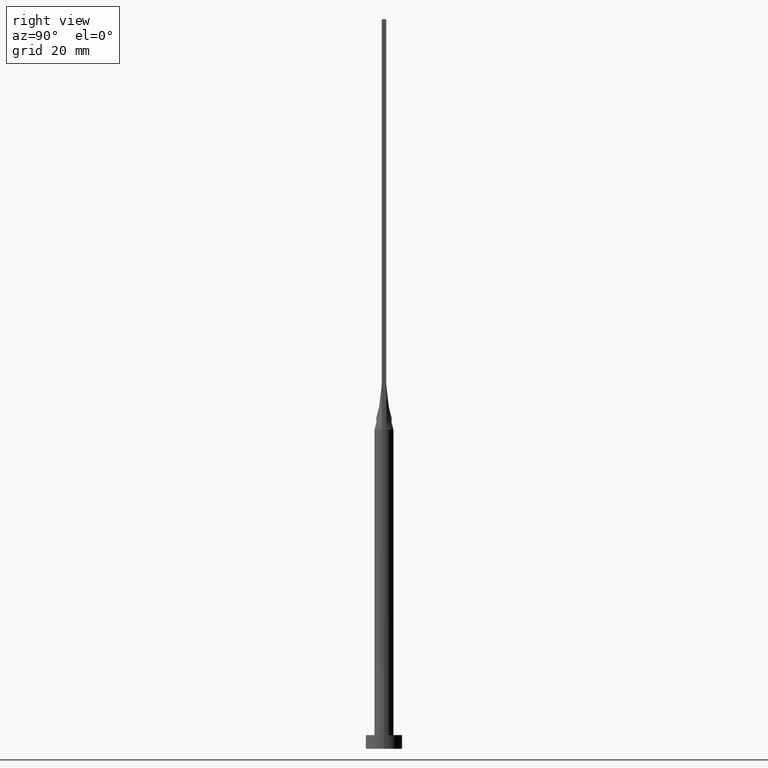
[diagram: clean part render]
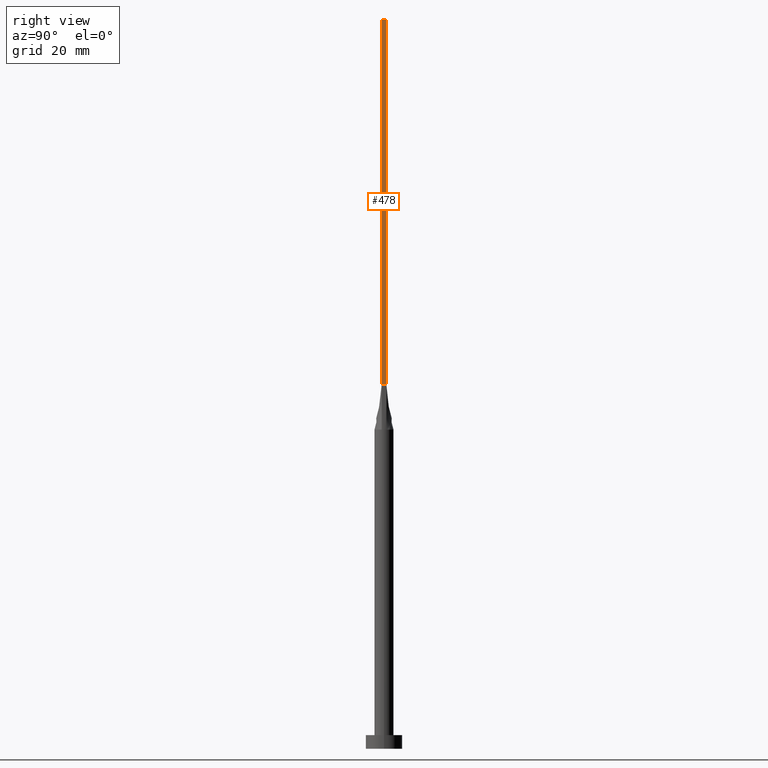
[diagram: same view with one face highlighted and labeled with its STEP entity id]
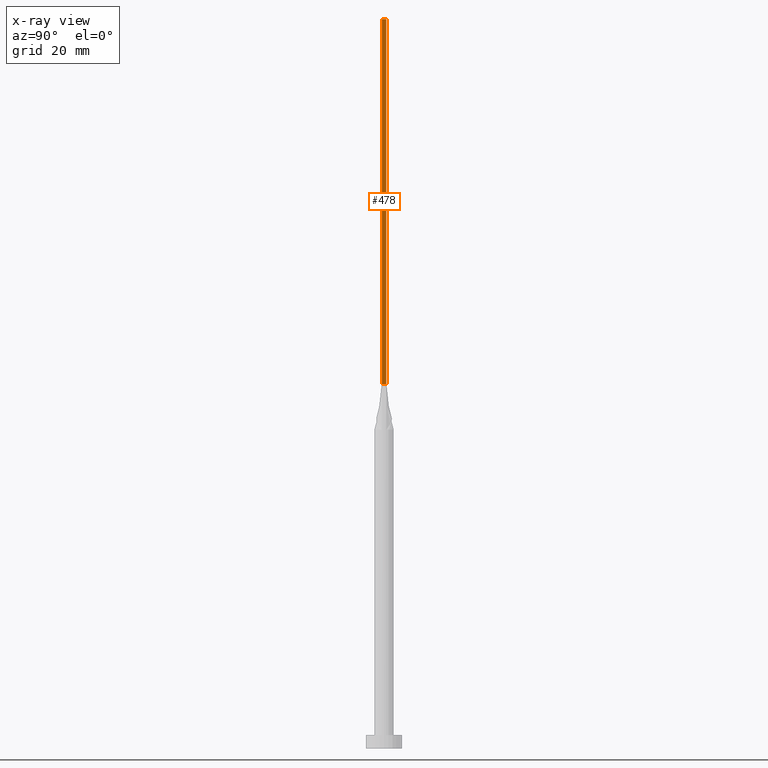
[diagram: x-ray of the same camera — body ghosted, the highlighted face saturated]
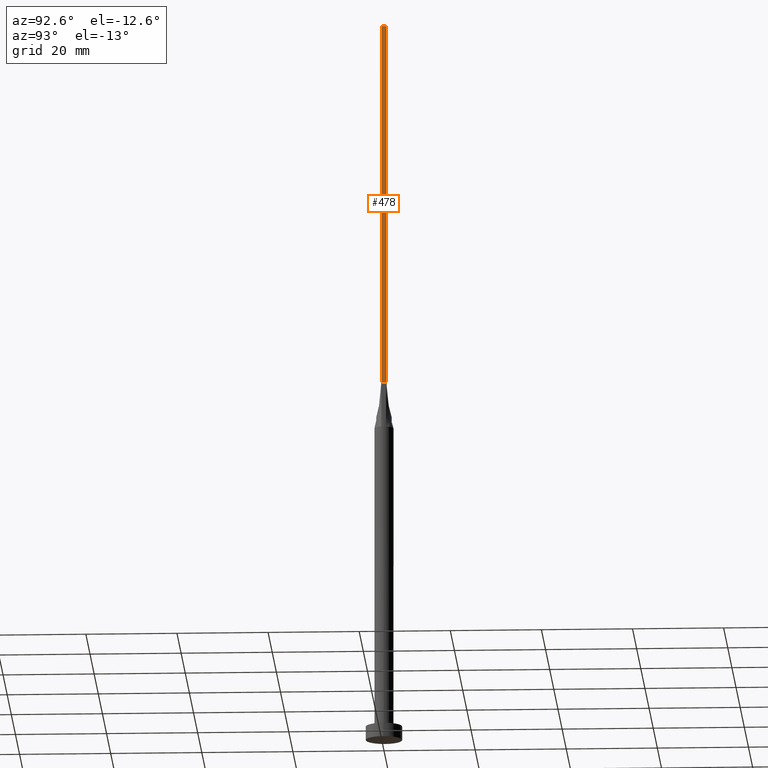
[diagram: same view with one face highlighted and labeled with its STEP entity id]
A machine part, right view. The second image highlights one B-rep face of the part: STEP entity #478.
The next image is the same camera in x-ray: the body ghosted, the highlighted face saturated — about 0% of this face is hidden behind the body in this view.
A second angle (auxiliary view) of the same face is appended — the face is thin or edge-on in the first view.
In plain terms, the highlighted planar face has unit normal (-1, 0, 0).
Its self-contained STEP definition (entity closure, byte-faithful):
#1 = CARTESIAN_POINT ( 'NONE',  ( 1.899999999999999023, -0.4999999999999997780, 160.0000000000000000 ) ) ;
#5 = LINE ( 'NONE', #10, #37 ) ;
#6 = ORIENTED_EDGE ( 'NONE', *, *, #476, .T. ) ;
#10 = CARTESIAN_POINT ( 'NONE',  ( 1.899999999999999023, -0.4999999999999997780, 160.0000000000000000 ) ) ;
#24 = LINE ( 'NONE', #469, #293 ) ;
#28 = ORIENTED_EDGE ( 'NONE', *, *, #549, .F. ) ;
#37 = VECTOR ( 'NONE', #264, 1000.000000000000000 ) ;
#60 = DIRECTION ( 'NONE',  ( 6.505213034913026604E-16, 1.000000000000000000, 0.000000000000000000 ) ) ;
#85 = EDGE_CURVE ( 'NONE', #450, #351, #277, .T. ) ;
#100 = DIRECTION ( 'NONE',  ( -0.000000000000000000, -0.000000000000000000, -1.000000000000000000 ) ) ;
#108 = DIRECTION ( 'NONE',  ( -6.505213034913026604E-16, -1.000000000000000000, 0.000000000000000000 ) ) ;
#112 = DIRECTION ( 'NONE',  ( -2.168404344971008868E-16, 1.000000000000000000, -0.000000000000000000 ) ) ;
#120 = VERTEX_POINT ( 'NONE', #388 ) ;
#133 = EDGE_LOOP ( 'NONE', ( #555, #28, #370, #6 ) ) ;
#136 = DIRECTION ( 'NONE',  ( -1.000000000000000000, 6.505213034913026604E-16, 0.000000000000000000 ) ) ;
#219 = AXIS2_PLACEMENT_3D ( 'NONE', #543, #136, #108 ) ;
#242 = LINE ( 'NONE', #375, #386 ) ;
#264 = DIRECTION ( 'NONE',  ( -0.000000000000000000, -0.000000000000000000, -1.000000000000000000 ) ) ;
#277 = LINE ( 'NONE', #464, #557 ) ;
#293 = VECTOR ( 'NONE', #100, 1000.000000000000000 ) ;
#350 = EDGE_CURVE ( 'NONE', #551, #120, #242, .T. ) ;
#351 = VERTEX_POINT ( 'NONE', #418 ) ;
#370 = ORIENTED_EDGE ( 'NONE', *, *, #85, .F. ) ;
#375 = CARTESIAN_POINT ( 'NONE',  ( 1.899999999999999689, 0.5000000000000002220, 80.00000000000000000 ) ) ;
#386 = VECTOR ( 'NONE', #112, 1000.000000000000000 ) ;
#388 = CARTESIAN_POINT ( 'NONE',  ( 1.899999999999999689, 0.5000000000000002220, 80.00000000000000000 ) ) ;
#418 = CARTESIAN_POINT ( 'NONE',  ( 1.899999999999999689, 0.5000000000000002220, 160.0000000000000000 ) ) ;
#449 = FACE_OUTER_BOUND ( 'NONE', #133, .T. ) ;
#450 = VERTEX_POINT ( 'NONE', #1 ) ;
#464 = CARTESIAN_POINT ( 'NONE',  ( 1.899999999999999023, -0.4999999999999997780, 160.0000000000000000 ) ) ;
#465 = CARTESIAN_POINT ( 'NONE',  ( 1.899999999999999023, -0.4999999999999997780, 80.00000000000000000 ) ) ;
#469 = CARTESIAN_POINT ( 'NONE',  ( 1.899999999999999689, 0.5000000000000002220, 160.0000000000000000 ) ) ;
#476 = EDGE_CURVE ( 'NONE', #450, #551, #5, .T. ) ;
#478 = ADVANCED_FACE ( 'NONE', ( #449 ), #499, .F. ) ;
#499 = PLANE ( 'NONE',  #219 ) ;
#543 = CARTESIAN_POINT ( 'NONE',  ( 1.899999999999999023, -0.4999999999999997780, 160.0000000000000000 ) ) ;
#549 = EDGE_CURVE ( 'NONE', #351, #120, #24, .T. ) ;
#551 = VERTEX_POINT ( 'NONE', #465 ) ;
#555 = ORIENTED_EDGE ( 'NONE', *, *, #350, .T. ) ;
#557 = VECTOR ( 'NONE', #60, 1000.000000000000000 ) ;